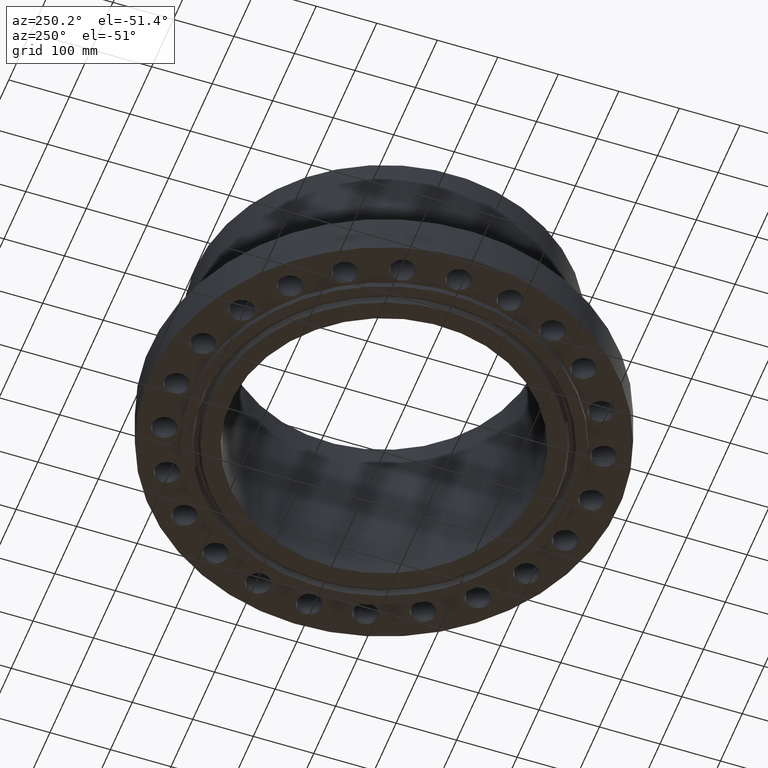
[diagram: clean part render]
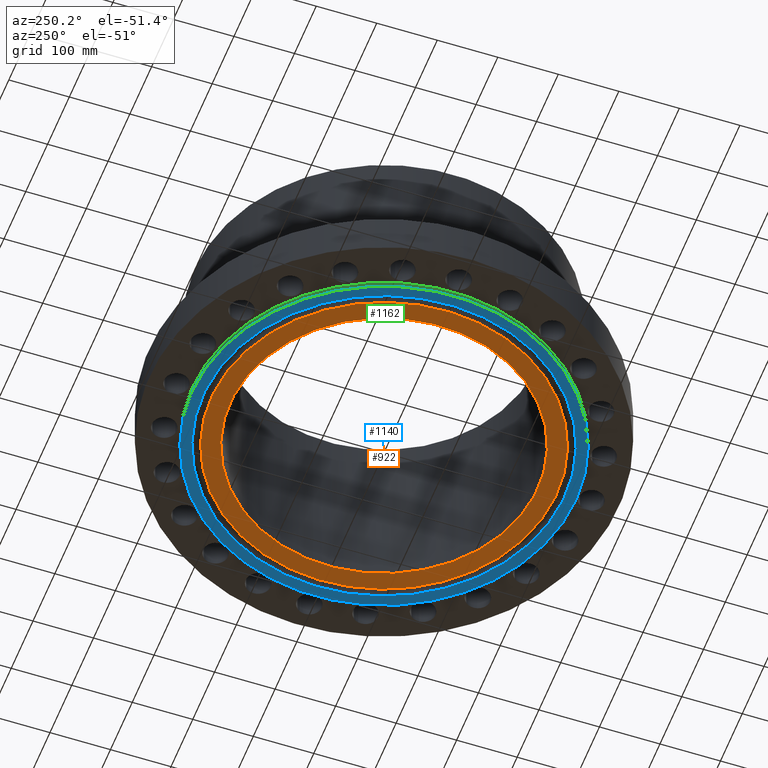
[diagram: same view with three faces highlighted in distinct colors, each labeled with its STEP entity id]
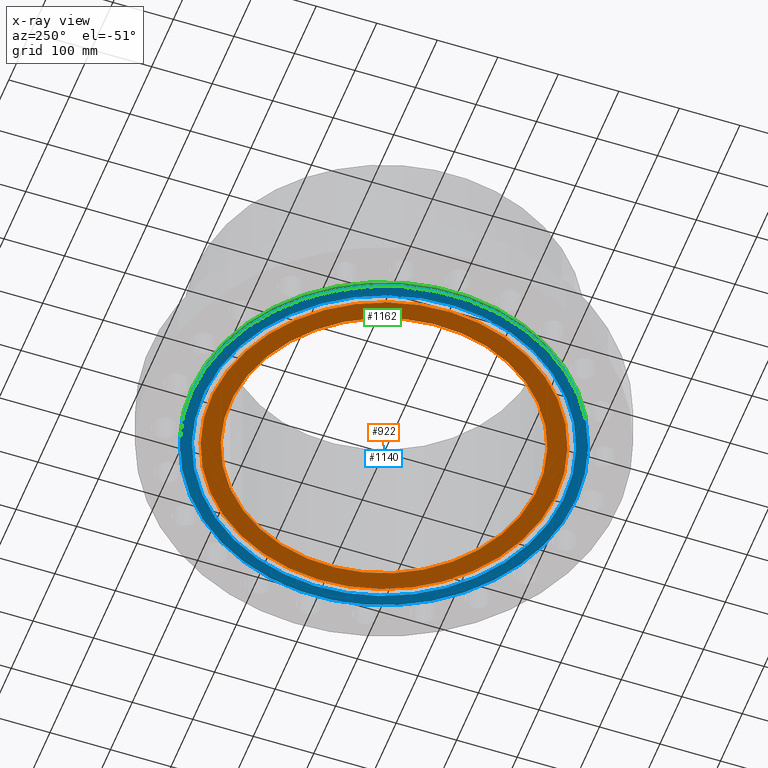
[diagram: x-ray of the same camera — body ghosted, the three highlighted faces saturated]
A machine part, auxiliary view with three faces highlighted in distinct colors.
The next image is the same camera in x-ray (body ghosted, the three faces saturated) — at least one of them is partly hidden behind the body in this view.
Their STEP definitions:

[orange] entity #922 — the highlighted planar face has unit normal (0, 0, -1).
#866=AXIS2_PLACEMENT_3D('Circle Axis2P3D',#864,#865,$) ;
#885=AXIS2_PLACEMENT_3D('Circle Axis2P3D',#883,#884,$) ;
#898=AXIS2_PLACEMENT_3D('Plane Axis2P3D',#895,#896,#897) ;
#902=AXIS2_PLACEMENT_3D('Circle Axis2P3D',#900,#901,$) ;
#911=AXIS2_PLACEMENT_3D('Circle Axis2P3D',#909,#910,$) ;
#861=CARTESIAN_POINT('Vertex',(4.79425538606,8.77582561894,-0.375000000002)) ;
#864=CARTESIAN_POINT('Axis2P3D Location',(0.,0.,-0.375000000002)) ;
#868=CARTESIAN_POINT('Vertex',(-4.79425538606,-8.77582561894,-0.375000000002)) ;
#883=CARTESIAN_POINT('Axis2P3D Location',(0.,0.,-0.375000000002)) ;
#895=CARTESIAN_POINT('Axis2P3D Location',(0.,11.2345,-0.375000000001)) ;
#900=CARTESIAN_POINT('Axis2P3D Location',(0.,0.,-0.375000000001)) ;
#904=CARTESIAN_POINT('Vertex',(-5.38610621347,-9.8592012916,-0.375000000001)) ;
#906=CARTESIAN_POINT('Vertex',(5.38610621347,9.8592012916,-0.375000000001)) ;
#909=CARTESIAN_POINT('Axis2P3D Location',(0.,0.,-0.375000000001)) ;
#865=DIRECTION('Axis2P3D Direction',(0.,0.,-0.0393700787402)) ;
#884=DIRECTION('Axis2P3D Direction',(0.,0.,-0.0393700787402)) ;
#896=DIRECTION('Axis2P3D Direction',(0.,0.,-0.0393700787402)) ;
#897=DIRECTION('Axis2P3D XDirection',(0.0393700787402,0.,0.)) ;
#901=DIRECTION('Axis2P3D Direction',(0.,0.,-0.0393700787402)) ;
#910=DIRECTION('Axis2P3D Direction',(0.,0.,-0.0393700787402)) ;
#915=ORIENTED_EDGE('',*,*,#908,.T.) ;
#916=ORIENTED_EDGE('',*,*,#913,.T.) ;
#919=ORIENTED_EDGE('',*,*,#870,.F.) ;
#920=ORIENTED_EDGE('',*,*,#887,.F.) ;
#921=FACE_BOUND('',#918,.T.) ;
#922=ADVANCED_FACE('PartBody',(#917,#921),#899,.T.) ;
#867=CIRCLE('generated circle',#866,10.) ;
#886=CIRCLE('generated circle',#885,10.) ;
#903=CIRCLE('generated circle',#902,11.2345) ;
#912=CIRCLE('generated circle',#911,11.2345) ;
#870=EDGE_CURVE('',#862,#869,#867,.T.) ;
#887=EDGE_CURVE('',#869,#862,#886,.T.) ;
#908=EDGE_CURVE('',#905,#907,#903,.T.) ;
#913=EDGE_CURVE('',#907,#905,#912,.T.) ;
#914=EDGE_LOOP('',(#915,#916)) ;
#918=EDGE_LOOP('',(#919,#920)) ;
#917=FACE_OUTER_BOUND('',#914,.T.) ;
#899=PLANE('',#898) ;
#862=VERTEX_POINT('',#861) ;
#869=VERTEX_POINT('',#868) ;
#905=VERTEX_POINT('',#904) ;
#907=VERTEX_POINT('',#906) ;

[blue] entity #1140 — the highlighted planar face has unit normal (0, 0, -1).
#898=AXIS2_PLACEMENT_3D('Plane Axis2P3D',#895,#896,#897) ;
#1089=AXIS2_PLACEMENT_3D('Circle Axis2P3D',#1087,#1088,$) ;
#1108=AXIS2_PLACEMENT_3D('Circle Axis2P3D',#1106,#1107,$) ;
#1120=AXIS2_PLACEMENT_3D('Circle Axis2P3D',#1118,#1119,$) ;
#1129=AXIS2_PLACEMENT_3D('Circle Axis2P3D',#1127,#1128,$) ;
#895=CARTESIAN_POINT('Axis2P3D Location',(0.,11.2345,-0.375000000001)) ;
#1084=CARTESIAN_POINT('Vertex',(-5.64068117447,-10.325197632,-0.375000000001)) ;
#1087=CARTESIAN_POINT('Axis2P3D Location',(0.,0.,-0.375000000001)) ;
#1091=CARTESIAN_POINT('Vertex',(5.64068117447,10.325197632,-0.375000000001)) ;
#1106=CARTESIAN_POINT('Axis2P3D Location',(0.,0.,-0.375000000001)) ;
#1118=CARTESIAN_POINT('Axis2P3D Location',(0.,0.,-0.375000000001)) ;
#1122=CARTESIAN_POINT('Vertex',(-5.99281923258,-10.9697820237,-0.375000000001)) ;
#1124=CARTESIAN_POINT('Vertex',(5.99281923258,10.9697820237,-0.375000000001)) ;
#1127=CARTESIAN_POINT('Axis2P3D Location',(0.,0.,-0.375000000001)) ;
#896=DIRECTION('Axis2P3D Direction',(0.,0.,-0.0393700787402)) ;
#897=DIRECTION('Axis2P3D XDirection',(0.0393700787402,0.,0.)) ;
#1088=DIRECTION('Axis2P3D Direction',(0.,0.,-0.0393700787402)) ;
#1107=DIRECTION('Axis2P3D Direction',(0.,0.,-0.0393700787402)) ;
#1119=DIRECTION('Axis2P3D Direction',(0.,0.,-0.0393700787402)) ;
#1128=DIRECTION('Axis2P3D Direction',(0.,0.,-0.0393700787402)) ;
#1133=ORIENTED_EDGE('',*,*,#1126,.T.) ;
#1134=ORIENTED_EDGE('',*,*,#1131,.T.) ;
#1137=ORIENTED_EDGE('',*,*,#1110,.F.) ;
#1138=ORIENTED_EDGE('',*,*,#1093,.F.) ;
#1139=FACE_BOUND('',#1136,.T.) ;
#1140=ADVANCED_FACE('PartBody',(#1135,#1139),#899,.T.) ;
#1090=CIRCLE('generated circle',#1089,11.7655) ;
#1109=CIRCLE('generated circle',#1108,11.7655) ;
#1121=CIRCLE('generated circle',#1120,12.5000000001) ;
#1130=CIRCLE('generated circle',#1129,12.5000000001) ;
#1093=EDGE_CURVE('',#1085,#1092,#1090,.T.) ;
#1110=EDGE_CURVE('',#1092,#1085,#1109,.T.) ;
#1126=EDGE_CURVE('',#1123,#1125,#1121,.T.) ;
#1131=EDGE_CURVE('',#1125,#1123,#1130,.T.) ;
#1132=EDGE_LOOP('',(#1133,#1134)) ;
#1136=EDGE_LOOP('',(#1137,#1138)) ;
#1135=FACE_OUTER_BOUND('',#1132,.T.) ;
#899=PLANE('',#898) ;
#1085=VERTEX_POINT('',#1084) ;
#1092=VERTEX_POINT('',#1091) ;
#1123=VERTEX_POINT('',#1122) ;
#1125=VERTEX_POINT('',#1124) ;

[green] entity #1162 — the highlighted cylindrical surface (partial cylindrical patch) has radius 317.5 mm, axis along (0, 0, -1).
#118=AXIS2_PLACEMENT_3D('Circle Axis2P3D',#116,#117,$) ;
#1120=AXIS2_PLACEMENT_3D('Circle Axis2P3D',#1118,#1119,$) ;
#1144=AXIS2_PLACEMENT_3D('Cylinder Axis2P3D',#1141,#1142,#1143) ;
#111=CARTESIAN_POINT('Vertex',(5.99281923258,10.9697820237,1.1189649382E-015)) ;
#113=CARTESIAN_POINT('Vertex',(-5.99281923258,-10.9697820237,1.1189649382E-015)) ;
#116=CARTESIAN_POINT('Axis2P3D Location',(0.,0.,0.)) ;
#1118=CARTESIAN_POINT('Axis2P3D Location',(0.,0.,-0.375000000001)) ;
#1122=CARTESIAN_POINT('Vertex',(-5.99281923258,-10.9697820237,-0.375000000001)) ;
#1124=CARTESIAN_POINT('Vertex',(5.99281923258,10.9697820237,-0.375000000001)) ;
#1141=CARTESIAN_POINT('Axis2P3D Location',(0.,0.,5.68750000002)) ;
#1146=CARTESIAN_POINT('Line Origine',(-5.99281923258,-10.9697820237,-0.187500000001)) ;
#1151=CARTESIAN_POINT('Line Origine',(5.99281923258,10.9697820237,-0.187500000001)) ;
#117=DIRECTION('Axis2P3D Direction',(0.,0.,-0.0393700787402)) ;
#1119=DIRECTION('Axis2P3D Direction',(0.,0.,-0.0393700787402)) ;
#1142=DIRECTION('Axis2P3D Direction',(0.,0.,-0.0393700787402)) ;
#1143=DIRECTION('Axis2P3D XDirection',(0.0188750212049,0.0345504945626,0.)) ;
#1147=DIRECTION('Vector Direction',(0.,0.,-0.0393700787402)) ;
#1152=DIRECTION('Vector Direction',(0.,0.,-0.0393700787402)) ;
#1148=VECTOR('Line Direction',#1147,0.0393700787402) ;
#1153=VECTOR('Line Direction',#1152,0.0393700787402) ;
#1157=ORIENTED_EDGE('',*,*,#1126,.F.) ;
#1158=ORIENTED_EDGE('',*,*,#1150,.T.) ;
#1159=ORIENTED_EDGE('',*,*,#120,.T.) ;
#1160=ORIENTED_EDGE('',*,*,#1155,.F.) ;
#1162=ADVANCED_FACE('PartBody',(#1161),#1145,.T.) ;
#119=CIRCLE('generated circle',#118,12.5000000001) ;
#1121=CIRCLE('generated circle',#1120,12.5000000001) ;
#1145=CYLINDRICAL_SURFACE('generated cylinder',#1144,12.5000000001) ;
#120=EDGE_CURVE('',#114,#112,#119,.T.) ;
#1126=EDGE_CURVE('',#1123,#1125,#1121,.T.) ;
#1150=EDGE_CURVE('',#1123,#114,#1149,.F.) ;
#1155=EDGE_CURVE('',#1125,#112,#1154,.F.) ;
#1156=EDGE_LOOP('',(#1157,#1158,#1159,#1160)) ;
#1161=FACE_OUTER_BOUND('',#1156,.T.) ;
#1149=LINE('Line',#1146,#1148) ;
#1154=LINE('Line',#1151,#1153) ;
#112=VERTEX_POINT('',#111) ;
#114=VERTEX_POINT('',#113) ;
#1123=VERTEX_POINT('',#1122) ;
#1125=VERTEX_POINT('',#1124) ;